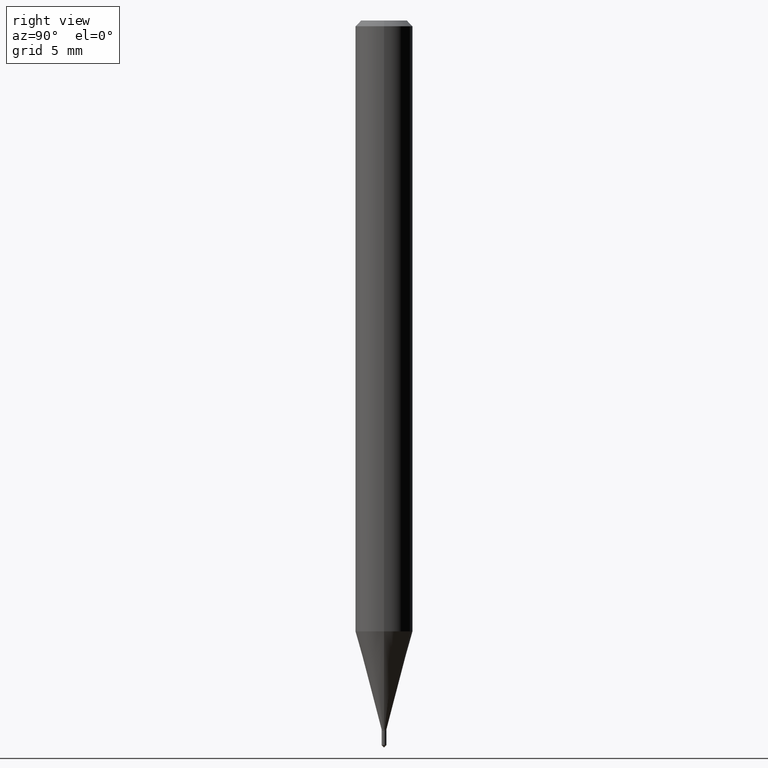
[diagram: clean part render]
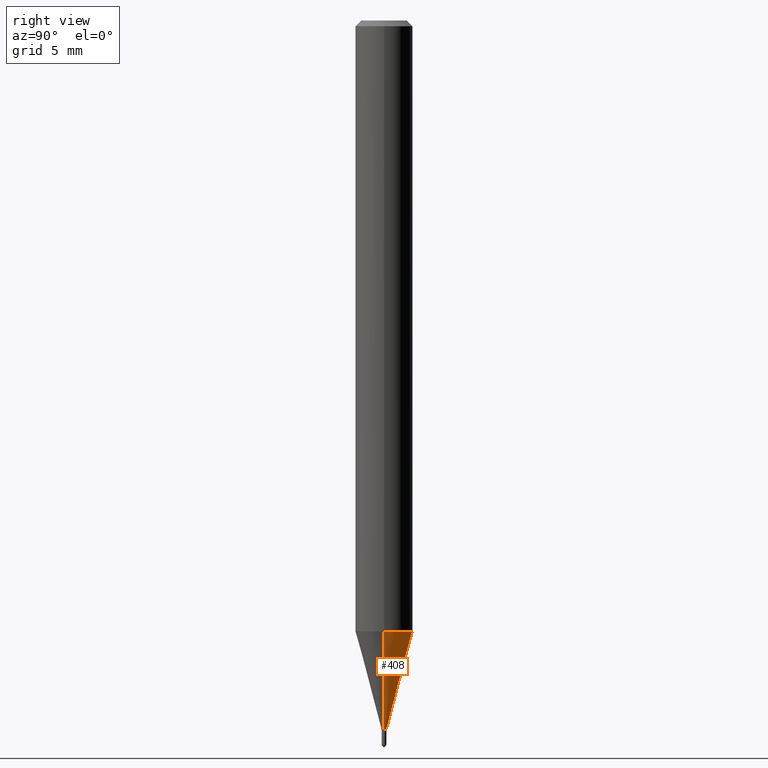
[diagram: same view with one face highlighted and labeled with its STEP entity id]
A machine part, right view. The second image highlights one B-rep face of the part: STEP entity #408.
In plain terms, the highlighted conical surface has half-angle 15 deg.
Its self-contained STEP definition (entity closure, byte-faithful):
#3 = VERTEX_POINT ( 'NONE', #424 ) ;
#20 = EDGE_CURVE ( 'NONE', #479, #99, #36, .T. ) ;
#36 = LINE ( 'NONE', #296, #431 ) ;
#66 = CIRCLE ( 'NONE', #346, 0.004899999999999998107 ) ;
#73 = ORIENTED_EDGE ( 'NONE', *, *, #357, .F. ) ;
#78 = DIRECTION ( 'NONE',  ( -0.2588190451025211836, 5.211531920934547886E-15, 0.9659258262890679791 ) ) ;
#99 = VERTEX_POINT ( 'NONE', #109 ) ;
#104 = CARTESIAN_POINT ( 'NONE',  ( 3.074221942927981307E-29, -4.389174181264353445E-15, -1.257109448770144855 ) ) ;
#109 = CARTESIAN_POINT ( 'NONE',  ( -0.05905000000000017180, -3.969598695798013952E-15, -1.257109448770144855 ) ) ;
#112 = FACE_OUTER_BOUND ( 'NONE', #419, .T. ) ;
#158 = CARTESIAN_POINT ( 'NONE',  ( 3.568428081985351240E-29, -5.094769569639917175E-15, -1.459199999999999831 ) ) ;
#182 = CARTESIAN_POINT ( 'NONE',  ( 0.004899999999999998107, -5.128986086760580222E-15, -1.459199999999999831 ) ) ;
#212 = DIRECTION ( 'NONE',  ( -2.445468806185136597E-29, 3.491481338843145583E-15, 1.000000000000000000 ) ) ;
#214 = AXIS2_PLACEMENT_3D ( 'NONE', #323, #478, #262 ) ;
#250 = LINE ( 'NONE', #182, #313 ) ;
#262 = DIRECTION ( 'NONE',  ( 1.000000000000000000, -6.982962677686196502E-15, 0.000000000000000000 ) ) ;
#273 = EDGE_CURVE ( 'NONE', #414, #479, #66, .T. ) ;
#290 = EDGE_CURVE ( 'NONE', #3, #99, #404, .T. ) ;
#296 = CARTESIAN_POINT ( 'NONE',  ( -0.004899999999999998107, -5.059952975587672945E-15, -1.459199999999999831 ) ) ;
#304 = CARTESIAN_POINT ( 'NONE',  ( -0.004899999999999998107, -5.061698716257093659E-15, -1.459199999999999831 ) ) ;
#313 = VECTOR ( 'NONE', #374, 39.37007874015748854 ) ;
#317 = ORIENTED_EDGE ( 'NONE', *, *, #273, .T. ) ;
#323 = CARTESIAN_POINT ( 'NONE',  ( 3.568428081985351240E-29, -5.094769569639917175E-15, -1.459199999999999831 ) ) ;
#337 = DIRECTION ( 'NONE',  ( 1.000000000000000000, -6.982962677686268288E-15, 0.000000000000000000 ) ) ;
#346 = AXIS2_PLACEMENT_3D ( 'NONE', #158, #439, #399 ) ;
#357 = EDGE_CURVE ( 'NONE', #414, #3, #250, .T. ) ;
#374 = DIRECTION ( 'NONE',  ( 0.2588190451025211836, 1.565188264969622559E-15, 0.9659258262890679791 ) ) ;
#375 = ORIENTED_EDGE ( 'NONE', *, *, #20, .T. ) ;
#399 = DIRECTION ( 'NONE',  ( 1.000000000000000000, -6.982962677686196502E-15, 0.000000000000000000 ) ) ;
#404 = CIRCLE ( 'NONE', #405, 0.05905000000000017180 ) ;
#405 = AXIS2_PLACEMENT_3D ( 'NONE', #104, #212, #337 ) ;
#408 = ADVANCED_FACE ( 'NONE', ( #112 ), #455, .T. ) ;
#414 = VERTEX_POINT ( 'NONE', #420 ) ;
#419 = EDGE_LOOP ( 'NONE', ( #317, #375, #474, #73 ) ) ;
#420 = CARTESIAN_POINT ( 'NONE',  ( 0.004899999999999998107, -5.128986086760580222E-15, -1.459199999999999831 ) ) ;
#424 = CARTESIAN_POINT ( 'NONE',  ( 0.05905000000000017180, -4.801518127381729154E-15, -1.257109448770144855 ) ) ;
#431 = VECTOR ( 'NONE', #78, 39.37007874015748854 ) ;
#439 = DIRECTION ( 'NONE',  ( -2.445468806185136597E-29, 3.491481338843145583E-15, 1.000000000000000000 ) ) ;
#455 = CONICAL_SURFACE ( 'NONE', #214, 0.004899999999999998107, 0.2617993877991499074 ) ;
#474 = ORIENTED_EDGE ( 'NONE', *, *, #290, .F. ) ;
#478 = DIRECTION ( 'NONE',  ( -2.445468806185136597E-29, 3.491481338843145583E-15, 1.000000000000000000 ) ) ;
#479 = VERTEX_POINT ( 'NONE', #304 ) ;